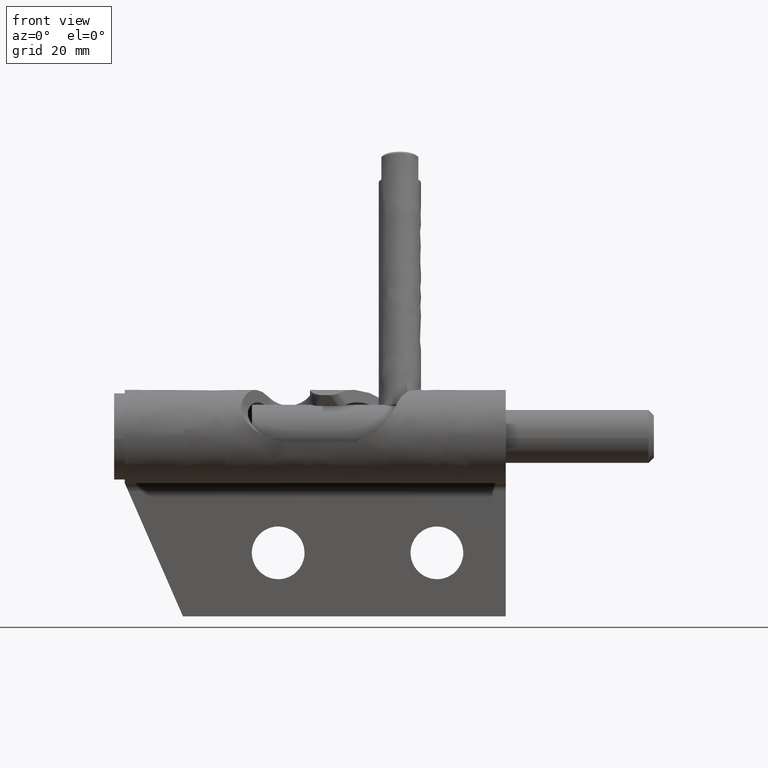
[diagram: clean part render]
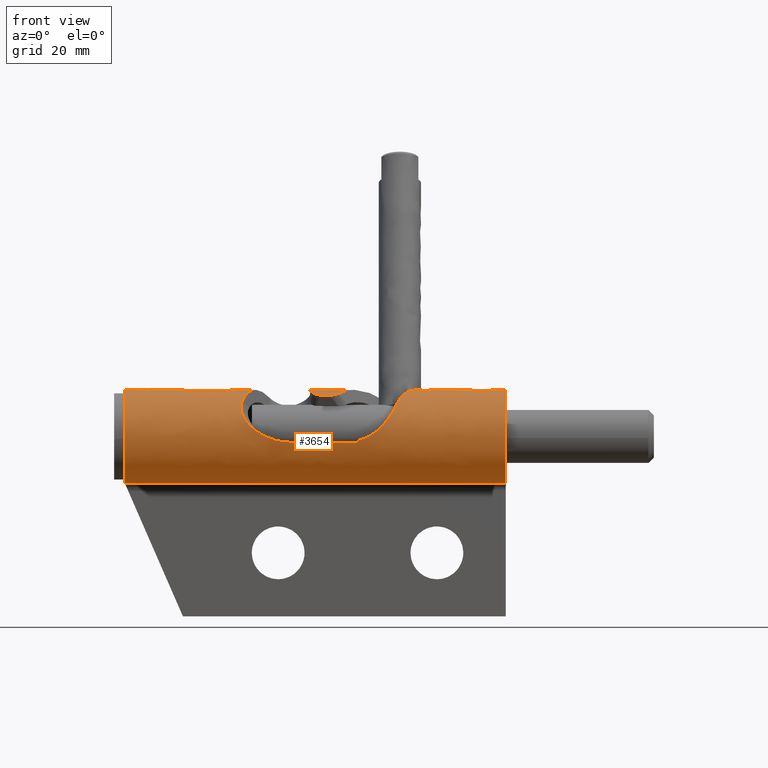
[diagram: same view with one face highlighted and labeled with its STEP entity id]
A machine part, front view. The second image highlights one B-rep face of the part: STEP entity #3654.
In plain terms, the highlighted face is a freeform B-spline surface patch.
Its self-contained STEP definition (entity closure, byte-faithful):
#1923=CARTESIAN_POINT('',(-23.350283713240248,-21.266748338416750,30.171190567687152));
#1924=VERTEX_POINT('',#1923);
#1972=CARTESIAN_POINT('',(-22.006414065182600,-22.023311079674102,29.826427534716700));
#1973=VERTEX_POINT('',#1972);
#1987=CARTESIAN_POINT('',(-23.350283713240248,-21.266748338416750,30.171190567687152));
#1988=CARTESIAN_POINT('',(-23.280269841618971,-21.376664668561720,30.127247278653360));
#1989=CARTESIAN_POINT('',(-23.196353640732589,-21.474614404531192,30.085553201843691));
#1990=CARTESIAN_POINT('',(-23.075399775995709,-21.583747055184620,30.037246218976801));
#1991=CARTESIAN_POINT('',(-23.050394791979560,-21.604898749778648,30.027777412467771));
#1992=CARTESIAN_POINT('',(-22.998748393146400,-21.645859190035718,30.009258139597929));
#1993=CARTESIAN_POINT('',(-22.972089903610328,-21.665669299804989,30.000206331088101));
#1994=CARTESIAN_POINT('',(-22.890771461091411,-21.722343837429520,29.974075957627281));
#1995=CARTESIAN_POINT('',(-22.834425044500140,-21.756748734957380,29.957891808693532));
#1996=CARTESIAN_POINT('',(-22.717757516207879,-21.819363964884818,29.928030146273080));
#1997=CARTESIAN_POINT('',(-22.657434240055530,-21.847570737929111,29.914353605734739));
#1998=CARTESIAN_POINT('',(-22.533000512930439,-21.898162204490369,29.889557972881459));
#1999=CARTESIAN_POINT('',(-22.468866526923531,-21.920509827887791,29.878455935598009));
#2000=CARTESIAN_POINT('',(-22.274781815381999,-21.978370762079120,29.849485781777751));
#2001=CARTESIAN_POINT('',(-22.141918302522971,-22.005230513287110,29.835722164066912));
#2002=CARTESIAN_POINT('',(-22.006414065182600,-22.023311079674102,29.826427534716700));
#2003=B_SPLINE_CURVE_WITH_KNOTS('',3,(#1987,#1988,#1989,#1990,#1991,#1992,#1993,#1994,#1995,#1996,#1997,#1998,#1999,#2000,#2001,#2002),.UNSPECIFIED.,.F.,.U.,(4,2,2,2,2,2,2,4),(0.0,0.249999999999997,0.312499999999999,0.375000000000001,0.500000000000001,0.625000000000001,0.750000000000001,1.0),.UNSPECIFIED.);
#2004=EDGE_CURVE('',#1924,#1973,#2003,.T.);
#2030=CARTESIAN_POINT('',(-21.508677604261351,-22.058360596108049,29.808310269958049));
#2031=VERTEX_POINT('',#2030);
#2039=CARTESIAN_POINT('',(-22.006414065182600,-22.023311079674102,29.826427534716700));
#2040=CARTESIAN_POINT('',(-21.841421596447422,-22.045326312133660,29.815110221896230));
#2041=CARTESIAN_POINT('',(-21.675632280070609,-22.058360596109591,29.808310269958831));
#2042=CARTESIAN_POINT('',(-21.508677604261351,-22.058360596108049,29.808310269958049));
#2043=QUASI_UNIFORM_CURVE('',3,(#2039,#2040,#2041,#2042),.UNSPECIFIED.,.F.,.U.);
#2044=EDGE_CURVE('',#1973,#2031,#2043,.T.);
#2069=CARTESIAN_POINT('',(-20.491322395737900,-22.058360596108301,29.808310269958550));
#2070=VERTEX_POINT('',#2069);
#2080=CARTESIAN_POINT('',(-19.993585934817151,-22.023311079674450,29.826427534716348));
#2081=VERTEX_POINT('',#2080);
#2095=CARTESIAN_POINT('',(-20.491322395737900,-22.058360596108301,29.808310269958550));
#2096=CARTESIAN_POINT('',(-20.324367719928471,-22.058360596109068,29.808310269958351));
#2097=CARTESIAN_POINT('',(-20.158578403551768,-22.045326312133739,29.815110221896319));
#2098=CARTESIAN_POINT('',(-19.993585934817151,-22.023311079674450,29.826427534716348));
#2099=QUASI_UNIFORM_CURVE('',3,(#2095,#2096,#2097,#2098),.UNSPECIFIED.,.F.,.U.);
#2100=EDGE_CURVE('',#2070,#2081,#2099,.T.);
#2141=CARTESIAN_POINT('',(-19.148261878896349,-21.745017740201799,29.963343652359502));
#2142=VERTEX_POINT('',#2141);
#2156=CARTESIAN_POINT('',(-19.993585934817151,-22.023311079674450,29.826427534716348));
#2157=CARTESIAN_POINT('',(-19.843228875683209,-22.003248675406969,29.836740962268959));
#2158=CARTESIAN_POINT('',(-19.696605068998402,-21.972422534008199,29.852542062346100));
#2159=CARTESIAN_POINT('',(-19.484055370510241,-21.904535926163980,29.886395793307440));
#2160=CARTESIAN_POINT('',(-19.414431972235239,-21.878308485150360,29.899358460429180));
#2161=CARTESIAN_POINT('',(-19.277977384742780,-21.817557453504548,29.928896258719458));
#2162=CARTESIAN_POINT('',(-19.211765328768362,-21.783282418464601,29.945348460242531));
#2163=CARTESIAN_POINT('',(-19.148261878896349,-21.745017740201799,29.963343652359502));
#2164=B_SPLINE_CURVE_WITH_KNOTS('',3,(#2156,#2157,#2158,#2159,#2160,#2161,#2162,#2163),.UNSPECIFIED.,.F.,.U.,(4,2,2,4),(0.0,0.499999999999996,0.749999999999998,1.0),.UNSPECIFIED.);
#2165=EDGE_CURVE('',#2081,#2142,#2164,.T.);
#2184=CARTESIAN_POINT('',(-23.995877802358748,-18.903393674051451,30.753506718426149));
#2185=VERTEX_POINT('',#2184);
#2192=CARTESIAN_POINT('',(-23.995877802358748,-18.903393674051451,30.753506718426149));
#2193=CARTESIAN_POINT('',(-24.005950280180141,-19.115626084145539,30.731603563176598));
#2194=CARTESIAN_POINT('',(-23.997479594606521,-19.326235269206681,30.702078929219869));
#2195=CARTESIAN_POINT('',(-23.959795228668920,-19.639823533713059,30.646516535472291));
#2196=CARTESIAN_POINT('',(-23.942944694359682,-19.744344253268309,30.626024146842180));
#2197=CARTESIAN_POINT('',(-23.901647615108612,-19.949708021485190,30.581938480714651));
#2198=CARTESIAN_POINT('',(-23.877206666608160,-20.050778437685569,30.558320445828169));
#2199=CARTESIAN_POINT('',(-23.793177348422081,-20.349450209287699,30.483056520494490));
#2200=CARTESIAN_POINT('',(-23.722983901292238,-20.542543903513241,30.427000644547189));
#2201=CARTESIAN_POINT('',(-23.618109864258130,-20.776826789222021,30.350548623769541));
#2202=CARTESIAN_POINT('',(-23.596231407816049,-20.823401008197219,30.334912523443720));
#2203=CARTESIAN_POINT('',(-23.551022289833799,-20.915251328923681,30.303232485951298));
#2204=CARTESIAN_POINT('',(-23.527674132178252,-20.960574446333830,30.287174696048549));
#2205=CARTESIAN_POINT('',(-23.455424994218038,-21.094781069546659,30.238409562046780));
#2206=CARTESIAN_POINT('',(-23.404326047466729,-21.181906079123259,30.205109530569590));
#2207=CARTESIAN_POINT('',(-23.350283713240248,-21.266748338416750,30.171190567687152));
#2208=B_SPLINE_CURVE_WITH_KNOTS('',3,(#2192,#2193,#2194,#2195,#2196,#2197,#2198,#2199,#2200,#2201,#2202,#2203,#2204,#2205,#2206,#2207),.UNSPECIFIED.,.F.,.U.,(4,2,2,2,2,2,2,4),(0.0,0.249999999999998,0.374999999999998,0.499999999999997,0.749999999999999,0.812500000000000,0.875000000000000,1.0),.UNSPECIFIED.);
#2209=EDGE_CURVE('',#2185,#1924,#2208,.T.);
#2316=CARTESIAN_POINT('',(-18.684868691935598,-21.340771953838001,30.141206467867150));
#2317=VERTEX_POINT('',#2316);
#2323=CARTESIAN_POINT('',(-19.148261878896349,-21.745017740201799,29.963343652359502));
#2324=CARTESIAN_POINT('',(-19.103606363433041,-21.718110085032048,29.975997840142540));
#2325=CARTESIAN_POINT('',(-19.059845874492051,-21.689245790729039,29.989405834081829));
#2326=CARTESIAN_POINT('',(-18.975038502481240,-21.627828164821189,30.017481081524469));
#2327=CARTESIAN_POINT('',(-18.934442897359219,-21.595616427878600,30.031992488201020));
#2328=CARTESIAN_POINT('',(-18.818064536651381,-21.494418895449449,30.076786482934828));
#2329=CARTESIAN_POINT('',(-18.747640841200219,-21.420913600680709,30.108320068638761));
#2330=CARTESIAN_POINT('',(-18.684868691935598,-21.340771953838001,30.141206467867150));
#2331=B_SPLINE_CURVE_WITH_KNOTS('',3,(#2323,#2324,#2325,#2326,#2327,#2328,#2329,#2330),.UNSPECIFIED.,.F.,.U.,(4,2,2,4),(0.0,0.249999999999996,0.499999999999992,1.0),.UNSPECIFIED.);
#2332=EDGE_CURVE('',#2142,#2317,#2331,.T.);
#2353=CARTESIAN_POINT('',(-21.508677604261351,-22.058360596108049,29.808310269958049));
#2354=CARTESIAN_POINT('',(-20.491322395737900,-22.058360596108301,29.808310269958550));
#2355=QUASI_UNIFORM_CURVE('',1,(#2353,#2354),.UNSPECIFIED.,.F.,.U.);
#2356=EDGE_CURVE('',#2031,#2070,#2355,.T.);
#2366=CARTESIAN_POINT('',(-15.070482217976350,-26.733738467919899,20.922125993459201));
#2367=VERTEX_POINT('',#2366);
#2368=CARTESIAN_POINT('',(-15.070482217976350,-26.760564376475500,21.167827057860851));
#2369=VERTEX_POINT('',#2368);
#2370=CARTESIAN_POINT('',(-15.070482217976350,-26.733738467919888,20.922125993459201));
#2371=CARTESIAN_POINT('',(-15.070482217976350,-26.748876812845861,21.044788145638702));
#2372=CARTESIAN_POINT('',(-15.070482217976350,-26.760564376475489,21.167827057860851));
#2380=(BOUNDED_CURVE()B_SPLINE_CURVE(2,(#2370,#2371,#2372),.UNSPECIFIED.,.F.,.U.)CURVE()GEOMETRIC_REPRESENTATION_ITEM()QUASI_UNIFORM_CURVE()RATIONAL_B_SPLINE_CURVE((1.0,0.999901388729047,1.0))REPRESENTATION_ITEM(''));
#2381=EDGE_CURVE('',#2367,#2369,#2380,.T.);
#2435=CARTESIAN_POINT('',(-7.450662444728820,-23.997559661727148,28.439664440327800));
#2436=VERTEX_POINT('',#2435);
#2437=CARTESIAN_POINT('',(-15.070482217976330,-26.760564376475489,21.167827057860809));
#2438=CARTESIAN_POINT('',(-14.597130628077990,-26.770942159430000,21.277077468507819));
#2439=CARTESIAN_POINT('',(-14.138334157659500,-26.782940931742399,21.422736501600291));
#2440=CARTESIAN_POINT('',(-13.249869341377360,-26.799319401325452,21.787249840144860));
#2441=CARTESIAN_POINT('',(-12.820203273706101,-26.803713413583839,22.006109412925071));
#2442=CARTESIAN_POINT('',(-12.301289147769840,-26.794204787653939,22.325653346972661));
#2443=CARTESIAN_POINT('',(-12.198186635377720,-26.791527794659022,22.392022205585558));
#2444=CARTESIAN_POINT('',(-11.995615378641670,-26.784403602394761,22.528105788804041));
#2445=CARTESIAN_POINT('',(-11.895995891169321,-26.779957421050810,22.597899582982681));
#2446=CARTESIAN_POINT('',(-11.601958684191979,-26.763603568890119,22.812279135839521));
#2447=CARTESIAN_POINT('',(-11.412358947434999,-26.748681838692629,22.961859547142531));
#2448=CARTESIAN_POINT('',(-10.861540996069330,-26.688922557453640,23.428655172870702));
#2449=CARTESIAN_POINT('',(-10.518261187825450,-26.629152193778332,23.763885750554788));
#2450=CARTESIAN_POINT('',(-10.115487846741530,-26.519171986929521,24.207273474196221));
#2451=CARTESIAN_POINT('',(-10.036101926589490,-26.495356715407599,24.297349331546020));
#2452=CARTESIAN_POINT('',(-9.880627651056987,-26.444153712924440,24.478944885567341));
#2453=CARTESIAN_POINT('',(-9.804701847489733,-26.416829396308291,24.570261977662131));
#2454=CARTESIAN_POINT('',(-9.582069057259202,-26.329484104379340,24.845478771031669));
#2455=CARTESIAN_POINT('',(-9.440500661889322,-26.264091397684570,25.030640020847059));
#2456=CARTESIAN_POINT('',(-9.034292390474001,-26.044806059017741,25.589016262678030));
#2457=CARTESIAN_POINT('',(-8.788103406159630,-25.867866344273970,25.965117705026039));
#2458=CARTESIAN_POINT('',(-8.505377251213636,-25.602379836883220,26.433442597731538));
#2459=CARTESIAN_POINT('',(-8.450086287940312,-25.547062410470080,26.527018143830340));
#2460=CARTESIAN_POINT('',(-8.341879565171032,-25.431818061441280,26.713822716621291));
#2461=CARTESIAN_POINT('',(-8.289230296418403,-25.372167524707240,26.806594349643031));
#2462=CARTESIAN_POINT('',(-8.135812222745559,-25.187696684550922,27.081911981564520));
#2463=CARTESIAN_POINT('',(-8.039342187347993,-25.057120586740400,27.261850464262970));
#2464=CARTESIAN_POINT('',(-7.764662880463771,-24.642518980643491,27.789389149817868));
#2465=CARTESIAN_POINT('',(-7.601192220203231,-24.335673737204790,28.124763041514679));
#2466=CARTESIAN_POINT('',(-7.450662444728820,-23.997559661727148,28.439664440327800));
#2467=B_SPLINE_CURVE_WITH_KNOTS('',3,(#2437,#2438,#2439,#2440,#2441,#2442,#2443,#2444,#2445,#2446,#2447,#2448,#2449,#2450,#2451,#2452,#2453,#2454,#2455,#2456,#2457,#2458,#2459,#2460,#2461,#2462,#2463,#2464,#2465,#2466),.UNSPECIFIED.,.F.,.U.,(4,2,2,2,2,2,2,2,2,2,2,2,2,2,4),(0.0,0.124999999999999,0.249999999999999,0.281249999999999,0.312499999999998,0.374999999999998,0.499999999999997,0.531249999999996,0.562499999999996,0.624999999999996,0.749999999999996,0.781249999999997,0.812499999999997,0.874999999999998,1.0),.UNSPECIFIED.);
#2468=EDGE_CURVE('',#2369,#2436,#2467,.T.);
#2537=CARTESIAN_POINT('',(-36.863984680403398,-23.997565088206851,28.439659386390101));
#2538=VERTEX_POINT('',#2537);
#2539=CARTESIAN_POINT('',(-27.826523505166101,-26.733738467919899,20.922125993459151));
#2540=VERTEX_POINT('',#2539);
#2541=CARTESIAN_POINT('',(-36.863984680403533,-23.997565088206830,28.439659386390140));
#2542=CARTESIAN_POINT('',(-36.897875620583193,-24.101386280675509,28.342965707112310));
#2543=CARTESIAN_POINT('',(-36.927155888791773,-24.203993854829712,28.242721616568090));
#2544=CARTESIAN_POINT('',(-36.963261288110942,-24.356032111378131,28.086553543041688));
#2545=CARTESIAN_POINT('',(-36.973982714239433,-24.406398302033580,28.033521028695031));
#2546=CARTESIAN_POINT('',(-36.992484275211332,-24.505484054432031,27.926549791028069));
#2547=CARTESIAN_POINT('',(-37.000296999286313,-24.554331958842852,27.872481425674440));
#2548=CARTESIAN_POINT('',(-37.032010510108407,-24.795107584740862,27.599232202489539));
#2549=CARTESIAN_POINT('',(-37.033946998050652,-24.976669821749070,27.371351625722401));
#2550=CARTESIAN_POINT('',(-37.003725632611527,-25.189712947705321,27.074776988711118));
#2551=CARTESIAN_POINT('',(-36.996043567937363,-25.231624444167110,27.014874450149200));
#2552=CARTESIAN_POINT('',(-36.977295002795863,-25.314044327006769,26.893885310754118));
#2553=CARTESIAN_POINT('',(-36.966248157627589,-25.354420745550819,26.832983658206931));
#2554=CARTESIAN_POINT('',(-36.928401569186043,-25.472137203493482,26.650602948489741));
#2555=CARTESIAN_POINT('',(-36.896812384642850,-25.546472690124951,26.528857879993790));
#2556=CARTESIAN_POINT('',(-36.783520050133802,-25.757899704195651,26.163436947952459));
#2557=CARTESIAN_POINT('',(-36.683346188522442,-25.883443869239180,25.919574937983850));
#2558=CARTESIAN_POINT('',(-36.497255368058070,-26.051298486725830,25.554508603326941));
#2559=CARTESIAN_POINT('',(-36.430097123156663,-26.103054560550000,25.434631360311538));
#2560=CARTESIAN_POINT('',(-36.286742967414177,-26.198957597854530,25.198949843475070));
#2561=CARTESIAN_POINT('',(-36.210488358990688,-26.243153680892739,25.083034395473021));
#2562=CARTESIAN_POINT('',(-35.968997603846191,-26.365801822385531,24.740820065329341));
#2563=CARTESIAN_POINT('',(-35.791091643741503,-26.434364964413980,24.520030721863730));
#2564=CARTESIAN_POINT('',(-35.549836593844631,-26.506930695792938,24.252819752328289));
#2565=CARTESIAN_POINT('',(-35.500585644349407,-26.520793515299761,24.199768554928799));
#2566=CARTESIAN_POINT('',(-35.400919872009752,-26.547094251628319,24.095252652882241));
#2567=CARTESIAN_POINT('',(-35.350429232574598,-26.559556935312450,24.043700838682380));
#2568=CARTESIAN_POINT('',(-35.197072690211343,-26.595041060525439,23.891079415420901));
#2569=CARTESIAN_POINT('',(-35.092325388377297,-26.616162951707580,23.792040525860841));
#2570=CARTESIAN_POINT('',(-34.771130053732072,-26.673012967129718,23.502510931348830));
#2571=CARTESIAN_POINT('',(-34.547762970188643,-26.702266497692399,23.319571222891138));
#2572=CARTESIAN_POINT('',(-34.084567144505307,-26.747902357309741,22.972067259049840));
#2573=CARTESIAN_POINT('',(-33.844726895698521,-26.764262894598389,22.807513775642860));
#2574=CARTESIAN_POINT('',(-33.473368904404872,-26.781611255016902,22.573933281516581));
#2575=CARTESIAN_POINT('',(-33.347581481734153,-26.786184845065382,22.498270375128691));
#2576=CARTESIAN_POINT('',(-33.094446043783492,-26.793235568403830,22.352598549267260));
#2577=CARTESIAN_POINT('',(-32.966822249203787,-26.795727400382550,22.282410377505830));
#2578=CARTESIAN_POINT('',(-32.580883079867412,-26.800680628298689,22.079529688424881));
#2579=CARTESIAN_POINT('',(-32.319511446324540,-26.800635550494430,21.954492026615760));
#2580=CARTESIAN_POINT('',(-31.788833820013689,-26.796432228280040,21.724251706180819));
#2581=CARTESIAN_POINT('',(-31.519526532936329,-26.792266756828859,21.619052386653820));
#2582=CARTESIAN_POINT('',(-30.972840217392509,-26.781958969394221,21.428797350121538));
#2583=CARTESIAN_POINT('',(-30.695461850164619,-26.775813150337569,21.343740040791779));
#2584=CARTESIAN_POINT('',(-30.272978321387139,-26.766515132816131,21.232142056086950));
#2585=CARTESIAN_POINT('',(-30.131078376938731,-26.763400802759609,21.197614325773198));
#2586=CARTESIAN_POINT('',(-29.845037692667031,-26.757357006226290,21.134139349830651));
#2587=CARTESIAN_POINT('',(-29.701507435285261,-26.754441396623321,21.105335393545989));
#2588=CARTESIAN_POINT('',(-29.270850633784519,-26.746326229910999,21.028170189906849));
#2589=CARTESIAN_POINT('',(-28.983039483310240,-26.741760439653579,20.988893103463759));
#2590=CARTESIAN_POINT('',(-28.405927745882838,-26.735464645992479,20.935871173620878));
#2591=CARTESIAN_POINT('',(-28.116627154832749,-26.733738467919800,20.922125993458351));
#2592=CARTESIAN_POINT('',(-27.826523505166101,-26.733738467919899,20.922125993459151));
#2593=B_SPLINE_CURVE_WITH_KNOTS('',3,(#2541,#2542,#2543,#2544,#2545,#2546,#2547,#2548,#2549,#2550,#2551,#2552,#2553,#2554,#2555,#2556,#2557,#2558,#2559,#2560,#2561,#2562,#2563,#2564,#2565,#2566,#2567,#2568,#2569,#2570,#2571,#2572,#2573,#2574,#2575,#2576,#2577,#2578,#2579,#2580,#2581,#2582,#2583,#2584,#2585,#2586,#2587,#2588,#2589,#2590,#2591,#2592),.UNSPECIFIED.,.F.,.U.,(4,2,2,2,2,2,2,2,2,2,2,2,2,2,2,2,2,2,2,2,2,2,2,2,2,4),(0.0,0.031250000000001,0.046875000000001,0.062500000000002,0.125000000000003,0.140625000000003,0.156250000000003,0.187500000000003,0.250000000000002,0.281250000000001,0.312500000000000,0.374999999999997,0.390624999999997,0.406249999999997,0.437499999999998,0.499999999999999,0.562500000000000,0.593750000000000,0.625000000000001,0.687500000000001,0.750000000000001,0.812500000000001,0.843750000000001,0.875000000000001,0.937500000000000,1.0),.UNSPECIFIED.);
#2594=EDGE_CURVE('',#2538,#2540,#2593,.T.);
#2684=CARTESIAN_POINT('',(-15.070482217976350,-26.733738467919899,20.922125993459201));
#2685=CARTESIAN_POINT('',(-27.826523505166101,-26.733738467919899,20.922125993459151));
#2686=QUASI_UNIFORM_CURVE('',1,(#2684,#2685),.UNSPECIFIED.,.F.,.U.);
#2687=EDGE_CURVE('',#2367,#2540,#2686,.T.);
#2697=CARTESIAN_POINT('',(-31.717855426498300,-13.229324157343560,29.394636705362149));
#2698=VERTEX_POINT('',#2697);
#2699=CARTESIAN_POINT('',(-31.717855426498300,-13.229324157343560,29.394636705362149));
#2700=CARTESIAN_POINT('',(-35.227740185628605,-18.985108847178303,33.108001414059018));
#2701=CARTESIAN_POINT('',(-36.863984680403398,-23.997565088206851,28.439659386390101));
#2709=(BOUNDED_CURVE()B_SPLINE_CURVE(2,(#2699,#2700,#2701),.UNSPECIFIED.,.F.,.U.)CURVE()GEOMETRIC_REPRESENTATION_ITEM()QUASI_UNIFORM_CURVE()RATIONAL_B_SPLINE_CURVE((1.0,0.789124581931236,1.0))REPRESENTATION_ITEM(''));
#2710=EDGE_CURVE('',#2698,#2538,#2709,.T.);
#2741=CARTESIAN_POINT('',(-3.586285180534330,-17.408086596651248,30.780070530621401));
#2742=VERTEX_POINT('',#2741);
#2743=CARTESIAN_POINT('',(-7.450662444728820,-23.997559661727148,28.439664440327800));
#2744=CARTESIAN_POINT('',(-6.209393190739935,-21.209469365893796,31.036342892519368));
#2745=CARTESIAN_POINT('',(-3.586285180534330,-17.408086596651248,30.780070530621401));
#2753=(BOUNDED_CURVE()B_SPLINE_CURVE(2,(#2743,#2744,#2745),.UNSPECIFIED.,.F.,.U.)CURVE()GEOMETRIC_REPRESENTATION_ITEM()QUASI_UNIFORM_CURVE()RATIONAL_B_SPLINE_CURVE((1.0,0.917681963500707,1.0))REPRESENTATION_ITEM(''));
#2754=EDGE_CURVE('',#2436,#2742,#2753,.T.);
#2798=CARTESIAN_POINT('',(-23.805771076697699,-15.197991057817751,30.341986926859700));
#2799=VERTEX_POINT('',#2798);
#2800=CARTESIAN_POINT('',(-23.805771076697699,-15.197991057817751,30.341986926859700));
#2801=CARTESIAN_POINT('',(-23.799489831256341,-15.084489507633130,30.303862633290201));
#2802=CARTESIAN_POINT('',(-23.798302603217859,-14.971212765856160,30.263237477765990));
#2803=CARTESIAN_POINT('',(-23.804396875244411,-14.801647293113771,30.198426763304710));
#2804=CARTESIAN_POINT('',(-23.807757933662160,-14.745025339772210,30.176112056693210));
#2805=CARTESIAN_POINT('',(-23.817089574965550,-14.632792371333080,30.130533880857801));
#2806=CARTESIAN_POINT('',(-23.823047964265541,-14.577211980257911,30.107287752995369));
#2807=CARTESIAN_POINT('',(-23.859166034690990,-14.301920470923630,29.988847751957682));
#2808=CARTESIAN_POINT('',(-23.908160142482888,-14.090002827596720,29.887031596859131));
#2809=CARTESIAN_POINT('',(-23.993847511574248,-13.834790287393220,29.752055348817802));
#2810=CARTESIAN_POINT('',(-24.012216092299099,-13.784234281254580,29.724674556599261));
#2811=CARTESIAN_POINT('',(-24.051433981199690,-13.684086243714869,29.669169840929982));
#2812=CARTESIAN_POINT('',(-24.072322640934289,-13.634407927196580,29.640995630657510));
#2813=CARTESIAN_POINT('',(-24.138486809774871,-13.487409407197649,29.555750104202591));
#2814=CARTESIAN_POINT('',(-24.186952533875662,-13.392736152917960,29.498323327444989));
#2815=CARTESIAN_POINT('',(-24.344912884923779,-13.117983325528369,29.324810216539451));
#2816=CARTESIAN_POINT('',(-24.466869117063460,-12.947115900900121,29.207470813861171));
#2817=CARTESIAN_POINT('',(-24.674721801241720,-12.707614283946720,29.031391878242509));
#2818=CARTESIAN_POINT('',(-24.748492064379182,-12.630338423242350,28.972478787315431));
#2819=CARTESIAN_POINT('',(-24.902213915812698,-12.483538604169240,28.856922017697158));
#2820=CARTESIAN_POINT('',(-24.982324034852731,-12.413775002963510,28.800116612113118));
#2821=CARTESIAN_POINT('',(-25.232317207848428,-12.214710669024321,28.633280484067210));
#2822=CARTESIAN_POINT('',(-25.411774549383271,-12.095560017610790,28.526776832714489));
#2823=CARTESIAN_POINT('',(-25.701373273561050,-11.935941942766661,28.377500036136979));
#2824=CARTESIAN_POINT('',(-25.801707016153500,-11.885805568650181,28.329359938368619));
#2825=CARTESIAN_POINT('',(-26.005886038371230,-11.793569194319550,28.238941210500020));
#2826=CARTESIAN_POINT('',(-26.110074303470132,-11.751246077458420,28.196461266304020));
#2827=CARTESIAN_POINT('',(-26.429018483053799,-11.635178862625310,28.077934116652450));
#2828=CARTESIAN_POINT('',(-26.650101640332309,-11.572235021749661,28.010739173695669));
#2829=CARTESIAN_POINT('',(-26.938044646758708,-11.511513361990239,27.944734047897569));
#2830=CARTESIAN_POINT('',(-26.996216848984030,-11.500275093857811,27.932437206215621));
#2831=CARTESIAN_POINT('',(-27.113771860444171,-11.479643163941770,27.909753107506720));
#2832=CARTESIAN_POINT('',(-27.173135135924319,-11.470260933027930,27.899378219534640));
#2833=CARTESIAN_POINT('',(-27.350941100985100,-11.445208482541780,27.871569705121608));
#2834=CARTESIAN_POINT('',(-27.469799503604261,-11.432495215901540,27.857308107124179));
#2835=CARTESIAN_POINT('',(-27.827328242634511,-11.405948252160250,27.827451497058249));
#2836=CARTESIAN_POINT('',(-28.066947076557302,-11.403595462470280,27.824762019718381));
#2837=CARTESIAN_POINT('',(-28.428328063309809,-11.423638111078690,27.847355441412589));
#2838=CARTESIAN_POINT('',(-28.549626645703452,-11.434372783421180,27.859437949372509));
#2839=CARTESIAN_POINT('',(-28.787738493997619,-11.463440693479990,27.891847440487069));
#2840=CARTESIAN_POINT('',(-28.905089034265011,-11.481770197776070,27.912169682926969));
#2841=CARTESIAN_POINT('',(-29.252255379944579,-11.547972156313980,27.984615038712551));
#2842=CARTESIAN_POINT('',(-29.477414535932020,-11.607018047643500,28.048245437076499));
#2843=CARTESIAN_POINT('',(-29.914409621379470,-11.756245752272770,28.202178972285541));
#2844=CARTESIAN_POINT('',(-30.120693287779819,-11.844495352894331,28.290433941686249));
#2845=CARTESIAN_POINT('',(-30.413587903917101,-11.997680312466731,28.435612443852179));
#2846=CARTESIAN_POINT('',(-30.508444232000858,-12.052233670092541,28.486155569151659));
#2847=CARTESIAN_POINT('',(-30.692682251531640,-12.168661949751840,28.591026849144662));
#2848=CARTESIAN_POINT('',(-30.782402860187350,-12.230818494434120,28.645589109424531));
#2849=CARTESIAN_POINT('',(-31.039570731350778,-12.426132374573370,28.811845500015540));
#2850=CARTESIAN_POINT('',(-31.195871278122830,-12.568343759073860,28.926376752145998));
#2851=CARTESIAN_POINT('',(-31.408484016633910,-12.801070795225650,29.100741597312879));
#2852=CARTESIAN_POINT('',(-31.475690974925978,-12.881897664522270,29.159301113468580));
#2853=CARTESIAN_POINT('',(-31.570896550868650,-13.008355078157599,29.247490735535909));
#2854=CARTESIAN_POINT('',(-31.601696069736231,-13.051378315567270,29.276945993667120));
#2855=CARTESIAN_POINT('',(-31.661386036970772,-13.139239813383750,29.335925979628740));
#2856=CARTESIAN_POINT('',(-31.690243357979920,-13.184043718780821,29.365423871385200));
#2857=CARTESIAN_POINT('',(-31.717855426498300,-13.229324157343560,29.394636705362149));
#2858=B_SPLINE_CURVE_WITH_KNOTS('',3,(#2800,#2801,#2802,#2803,#2804,#2805,#2806,#2807,#2808,#2809,#2810,#2811,#2812,#2813,#2814,#2815,#2816,#2817,#2818,#2819,#2820,#2821,#2822,#2823,#2824,#2825,#2826,#2827,#2828,#2829,#2830,#2831,#2832,#2833,#2834,#2835,#2836,#2837,#2838,#2839,#2840,#2841,#2842,#2843,#2844,#2845,#2846,#2847,#2848,#2849,#2850,#2851,#2852,#2853,#2854,#2855,#2856,#2857),.UNSPECIFIED.,.F.,.U.,(4,2,2,2,2,2,2,2,2,2,2,2,2,2,2,2,2,2,2,2,2,2,2,2,2,2,2,2,4),(0.0,0.031250000000001,0.046875000000002,0.062500000000002,0.125000000000003,0.140625000000004,0.156250000000004,0.187500000000004,0.250000000000004,0.281250000000004,0.312500000000004,0.375000000000003,0.406250000000003,0.437500000000003,0.500000000000003,0.515625000000003,0.531250000000002,0.562500000000002,0.625000000000001,0.656250000000001,0.687500000000001,0.750000000000000,0.812500000000000,0.843749999999999,0.874999999999999,0.937499999999999,0.968749999999999,0.984374999999999,1.0),.UNSPECIFIED.);
#2859=EDGE_CURVE('',#2799,#2698,#2858,.T.);
#2945=CARTESIAN_POINT('',(-23.995877802358748,-18.903393674051451,30.753506718426149));
#2946=CARTESIAN_POINT('',(-23.905832628450273,-17.006094457736303,30.949314885941678));
#2947=CARTESIAN_POINT('',(-23.805771076697699,-15.197991057817751,30.341986926859700));
#2955=(BOUNDED_CURVE()B_SPLINE_CURVE(2,(#2945,#2946,#2947),.UNSPECIFIED.,.F.,.U.)CURVE()GEOMETRIC_REPRESENTATION_ITEM()QUASI_UNIFORM_CURVE()RATIONAL_B_SPLINE_CURVE((1.0,0.977306822398068,1.0))REPRESENTATION_ITEM(''));
#2956=EDGE_CURVE('',#2185,#2799,#2955,.T.);
#2995=CARTESIAN_POINT('',(-9.999864550673749,-12.400854903743040,28.788930268537001));
#2996=VERTEX_POINT('',#2995);
#2997=CARTESIAN_POINT('',(-3.586285180534330,-17.408086596651248,30.780070530621401));
#2998=CARTESIAN_POINT('',(-3.434466499745654,-17.188072432179140,30.765238151735861));
#2999=CARTESIAN_POINT('',(-3.304050733321173,-16.959186112618049,30.741517648270761));
#3000=CARTESIAN_POINT('',(-3.139660007354959,-16.603545684873971,30.689319388281511));
#3001=CARTESIAN_POINT('',(-3.090104560747355,-16.482924779244950,30.669145601514000));
#3002=CARTESIAN_POINT('',(-3.023873505990992,-16.298840394476400,30.634231677917519));
#3003=CARTESIAN_POINT('',(-3.003149349379088,-16.236952354830692,30.621817390017579));
#3004=CARTESIAN_POINT('',(-2.964479379100699,-16.112102403357142,30.595342620892829));
#3005=CARTESIAN_POINT('',(-2.946490507891870,-16.048954529933091,30.581235937556919));
#3006=CARTESIAN_POINT('',(-2.864589131757646,-15.733945129186401,30.507174242899548));
#3007=CARTESIAN_POINT('',(-2.823980826037490,-15.482812762103380,30.436417887322321));
#3008=CARTESIAN_POINT('',(-2.799792680157855,-15.107758773555060,30.312176927742371));
#3009=CARTESIAN_POINT('',(-2.797891510217214,-14.983011948304210,30.267740737582152));
#3010=CARTESIAN_POINT('',(-2.804582034416872,-14.796315776377840,30.196392245817801));
#3011=CARTESIAN_POINT('',(-2.808426208996597,-14.733962527495260,30.171746254977158));
#3012=CARTESIAN_POINT('',(-2.819262544120014,-14.610624562468169,30.121365142080140));
#3013=CARTESIAN_POINT('',(-2.826243733376328,-14.549603605227780,30.095622408216350));
#3014=CARTESIAN_POINT('',(-2.868790464185894,-14.247647808721879,29.964248385890130));
#3015=CARTESIAN_POINT('',(-2.927068889029052,-14.016105799017611,29.850642502350560));
#3016=CARTESIAN_POINT('',(-3.050126046329896,-13.682783023268900,29.669265789624738));
#3017=CARTESIAN_POINT('',(-3.097412845578304,-13.573531483080551,29.606666602205159));
#3018=CARTESIAN_POINT('',(-3.202216692710714,-13.363552268749190,29.480531582966659));
#3019=CARTESIAN_POINT('',(-3.259797953120216,-13.262466325656479,29.416830764199549));
#3020=CARTESIAN_POINT('',(-3.385008229785025,-13.067558759638469,29.288664302236491));
#3021=CARTESIAN_POINT('',(-3.452637917580421,-12.973738328218641,29.224197547164000));
#3022=CARTESIAN_POINT('',(-3.561621399617443,-12.838189416723891,29.127327384847419));
#3023=CARTESIAN_POINT('',(-3.599208092808852,-12.793871398109740,29.095009393454191));
#3024=CARTESIAN_POINT('',(-3.676928768977937,-12.706935871824751,29.030391557207000));
#3025=CARTESIAN_POINT('',(-3.717161566622616,-12.664221399158130,28.998016048686001));
#3026=CARTESIAN_POINT('',(-3.923436093555947,-12.456219030664901,28.837447102679420));
#3027=CARTESIAN_POINT('',(-4.104198158684331,-12.307722621837019,28.713370199159620));
#3028=CARTESIAN_POINT('',(-4.398921787095567,-12.108611662166711,28.537536519826830));
#3029=CARTESIAN_POINT('',(-4.501123806661303,-12.046212370010080,28.480650788799050));
#3030=CARTESIAN_POINT('',(-4.713831171054689,-11.929179097274810,28.371150238098121));
#3031=CARTESIAN_POINT('',(-4.824688116384214,-11.874446686371931,28.318424980782329));
#3032=CARTESIAN_POINT('',(-5.163426510634439,-11.724874146496330,28.171092777311419));
#3033=CARTESIAN_POINT('',(-5.399356213893474,-11.643293586308660,28.086144259787510));
#3034=CARTESIAN_POINT('',(-5.769405861367234,-11.546701448936860,27.983072363430740));
#3035=CARTESIAN_POINT('',(-5.895465430517431,-11.518836206396680,27.952791364354180));
#3036=CARTESIAN_POINT('',(-6.088919111580974,-11.483705281783450,27.914237519080899));
#3037=CARTESIAN_POINT('',(-6.154253872045336,-11.473098986152211,27.902521354509108));
#3038=CARTESIAN_POINT('',(-6.284740347565611,-11.454390272452130,27.881767462220349));
#3039=CARTESIAN_POINT('',(-6.350081057277312,-11.446248755741969,27.872687077979890));
#3040=CARTESIAN_POINT('',(-6.677268084992837,-11.411476130268641,27.833789113239511));
#3041=CARTESIAN_POINT('',(-6.940555560782203,-11.402443808595050,27.823441417223350));
#3042=CARTESIAN_POINT('',(-7.271620190758440,-11.414670187050730,27.837246341991460));
#3043=CARTESIAN_POINT('',(-7.337931463471912,-11.418304232802139,27.841346943397230));
#3044=CARTESIAN_POINT('',(-7.470753947087702,-11.428004162438651,27.852258025425989));
#3045=CARTESIAN_POINT('',(-7.537361784919291,-11.434088383424660,27.859088866315549));
#3046=CARTESIAN_POINT('',(-7.735022995483314,-11.455788194061050,27.883346211065302));
#3047=CARTESIAN_POINT('',(-7.864708820745704,-11.474881515004171,27.904579360572018));
#3048=CARTESIAN_POINT('',(-8.120121861501412,-11.522126342019041,27.956373186744081));
#3049=CARTESIAN_POINT('',(-8.245848732768025,-11.550278726114090,27.986934590564740));
#3050=CARTESIAN_POINT('',(-8.431558896892970,-11.599401586971171,28.039280795820162));
#3051=CARTESIAN_POINT('',(-8.492981524366771,-11.616927386383869,28.057814559788842));
#3052=CARTESIAN_POINT('',(-8.614871290370825,-11.654328589212090,28.096981841681590));
#3053=CARTESIAN_POINT('',(-8.675485029453482,-11.674257096372230,28.117669674061808));
#3054=CARTESIAN_POINT('',(-8.974166223368512,-11.779223685140650,28.225466281347721));
#3055=CARTESIAN_POINT('',(-9.198462211241493,-11.879660294656301,28.325127421455239));
#3056=CARTESIAN_POINT('',(-9.515045130509815,-12.055818860095471,28.489465257447350));
#3057=CARTESIAN_POINT('',(-9.617234230074098,-12.118822313354340,28.546743356756519));
#3058=CARTESIAN_POINT('',(-9.765533027969266,-12.220164668940029,28.635927096955982));
#3059=CARTESIAN_POINT('',(-9.814110289585582,-12.255081867266989,28.666192551210209));
#3060=CARTESIAN_POINT('',(-9.908712261524491,-12.326589934776470,28.727155841322201));
#3061=CARTESIAN_POINT('',(-9.954855063125457,-12.363259223426590,28.757923370431449));
#3062=CARTESIAN_POINT('',(-9.999864550673749,-12.400854903743040,28.788930268537001));
#3063=B_SPLINE_CURVE_WITH_KNOTS('',3,(#2997,#2998,#2999,#3000,#3001,#3002,#3003,#3004,#3005,#3006,#3007,#3008,#3009,#3010,#3011,#3012,#3013,#3014,#3015,#3016,#3017,#3018,#3019,#3020,#3021,#3022,#3023,#3024,#3025,#3026,#3027,#3028,#3029,#3030,#3031,#3032,#3033,#3034,#3035,#3036,#3037,#3038,#3039,#3040,#3041,#3042,#3043,#3044,#3045,#3046,#3047,#3048,#3049,#3050,#3051,#3052,#3053,#3054,#3055,#3056,#3057,#3058,#3059,#3060,#3061,#3062),.UNSPECIFIED.,.F.,.U.,(4,2,2,2,2,2,2,2,2,2,2,2,2,2,2,2,2,2,2,2,2,2,2,2,2,2,2,2,2,2,2,2,4),(0.0,0.062500000000001,0.093750000000001,0.109375000000001,0.125000000000001,0.187500000000001,0.218750000000001,0.234375000000001,0.250000000000001,0.312500000000004,0.343750000000005,0.375000000000005,0.406250000000006,0.421875000000007,0.437500000000007,0.500000000000006,0.531250000000006,0.562500000000005,0.625000000000005,0.656250000000004,0.671875000000004,0.687500000000004,0.750000000000004,0.765625000000004,0.781250000000004,0.812500000000003,0.843750000000003,0.859375000000003,0.875000000000003,0.937500000000002,0.968750000000001,0.984375000000000,1.0),.UNSPECIFIED.);
#3064=EDGE_CURVE('',#2742,#2996,#3063,.T.);
#3155=CARTESIAN_POINT('',(-9.999864550673749,-12.400854903743040,28.788930268537001));
#3156=CARTESIAN_POINT('',(-14.866593646009740,-16.465953203319245,32.141605036072164));
#3157=CARTESIAN_POINT('',(-18.684868691935598,-21.340771953838001,30.141206467867150));
#3165=(BOUNDED_CURVE()B_SPLINE_CURVE(2,(#3155,#3156,#3157),.UNSPECIFIED.,.F.,.U.)CURVE()GEOMETRIC_REPRESENTATION_ITEM()QUASI_UNIFORM_CURVE()RATIONAL_B_SPLINE_CURVE((1.0,0.857953100951001,1.0))REPRESENTATION_ITEM(''));
#3166=EDGE_CURVE('',#2996,#2317,#3165,.T.);
#3398=CARTESIAN_POINT('',(13.0,-11.994363258705819,15.567867590633901));
#3399=VERTEX_POINT('',#3398);
#3405=CARTESIAN_POINT('',(13.0,-18.0,13.199996999999900));
#3406=VERTEX_POINT('',#3405);
#3407=CARTESIAN_POINT('',(13.0,-11.994363258705819,15.567867590633901));
#3408=CARTESIAN_POINT('',(13.000000000000002,-6.669364841139180,20.539784268848205));
#3409=CARTESIAN_POINT('',(13.0,-10.559813530002019,26.699324308204030));
#3410=CARTESIAN_POINT('',(13.000000000000002,-14.450262218864861,32.858864347559845));
#3411=CARTESIAN_POINT('',(13.0,-21.227788313813210,30.186657317931150));
#3412=CARTESIAN_POINT('',(13.000000000000002,-28.005314408761571,27.514450288302459));
#3413=CARTESIAN_POINT('',(13.0,-26.645305014798350,20.357222069343841));
#3414=CARTESIAN_POINT('',(13.000000000000002,-25.285295620835129,13.199993850385226));
#3415=CARTESIAN_POINT('',(13.0,-18.0,13.199996999999900));
#3423=(BOUNDED_CURVE()B_SPLINE_CURVE(2,(#3407,#3408,#3409,#3410,#3411,#3412,#3413,#3414,#3415),.UNSPECIFIED.,.F.,.U.)B_SPLINE_CURVE_WITH_KNOTS((3,2,2,2,3),(0.0,0.250000000000000,0.500000000000000,0.750000000000000,1.0),.UNSPECIFIED.)CURVE()GEOMETRIC_REPRESENTATION_ITEM()RATIONAL_B_SPLINE_CURVE((1.0,0.770285233956223,1.0,0.770285233956223,1.0,0.770285233956223,1.0,0.770285233956223,1.0))REPRESENTATION_ITEM(''));
#3424=EDGE_CURVE('',#3399,#3406,#3423,.T.);
#3460=CARTESIAN_POINT('',(-59.0,-11.994363258705819,15.567867590633901));
#3461=VERTEX_POINT('',#3460);
#3467=CARTESIAN_POINT('',(-59.0,-11.994363258705819,15.567867590633901));
#3468=CARTESIAN_POINT('',(13.0,-11.994363258705819,15.567867590633901));
#3469=QUASI_UNIFORM_CURVE('',1,(#3467,#3468),.UNSPECIFIED.,.F.,.U.);
#3470=EDGE_CURVE('',#3461,#3399,#3469,.T.);
#3568=CARTESIAN_POINT('',(-59.0,-18.0,13.199996999999900));
#3569=VERTEX_POINT('',#3568);
#3577=CARTESIAN_POINT('',(-59.0,-18.0,13.199996999999900));
#3578=CARTESIAN_POINT('',(13.0,-18.0,13.199996999999900));
#3579=QUASI_UNIFORM_CURVE('',1,(#3577,#3578),.UNSPECIFIED.,.F.,.U.);
#3580=EDGE_CURVE('',#3569,#3406,#3579,.T.);
#3585=CARTESIAN_POINT('',(-60.800000000000011,-17.764103892851281,13.203162328050380));
#3586=CARTESIAN_POINT('',(14.845000000000010,-17.764103892851281,13.203162328050380));
#3587=CARTESIAN_POINT('',(-60.800000000000011,-25.244183521806537,13.002576420769230));
#3588=CARTESIAN_POINT('',(14.845000000000008,-25.244183521806537,13.002576420769230));
#3589=CARTESIAN_POINT('',(-60.800000000000011,-26.644528273955402,20.353145142768941));
#3590=CARTESIAN_POINT('',(14.845000000000010,-26.644528273955402,20.353145142768941));
#3591=CARTESIAN_POINT('',(-60.800000000000011,-28.044873026104263,27.703713864768648));
#3592=CARTESIAN_POINT('',(14.845000000000008,-28.044873026104263,27.703713864768648));
#3593=CARTESIAN_POINT('',(-60.800000000000011,-21.014983413529539,30.267398322092731));
#3594=CARTESIAN_POINT('',(14.845000000000010,-21.014983413529539,30.267398322092731));
#3595=CARTESIAN_POINT('',(-60.800000000000011,-13.985093800954804,32.831082779416818));
#3596=CARTESIAN_POINT('',(14.845000000000008,-13.985093800954804,32.831082779416818));
#3597=CARTESIAN_POINT('',(-60.800000000000011,-10.324744064332039,26.304700491554961));
#3598=CARTESIAN_POINT('',(14.845000000000010,-10.324744064332039,26.304700491554961));
#3599=CARTESIAN_POINT('',(-60.800000000000011,-6.664394327709276,19.778318203693114));
#3600=CARTESIAN_POINT('',(14.845000000000008,-6.664394327709276,19.778318203693114));
#3601=CARTESIAN_POINT('',(-60.800000000000011,-12.517535924939949,15.116498880244460));
#3602=CARTESIAN_POINT('',(14.845000000000010,-12.517535924939949,15.116498880244460));
#3610=(BOUNDED_SURFACE()B_SPLINE_SURFACE(1,2,((#3585,#3587,#3589,#3591,#3593,#3595,#3597,#3599,#3601),(#3586,#3588,#3590,#3592,#3594,#3596,#3598,#3600,#3602)),.UNSPECIFIED.,.F.,.F.,.U.)B_SPLINE_SURFACE_WITH_KNOTS((2,2),(3,2,2,2,3),(0.0,75.645000000000024),(0.0,12.942359956051011,25.884719912102021,38.827079868153028,51.769439824204042),.UNSPECIFIED.)GEOMETRIC_REPRESENTATION_ITEM()RATIONAL_B_SPLINE_SURFACE(((1.0,0.761821030690223,1.0,0.761821030690223,1.0,0.761821030690223,1.0,0.761821030690223,1.0),(1.0,0.761821030690223,1.0,0.761821030690223,1.0,0.761821030690223,1.0,0.761821030690223,1.0)))REPRESENTATION_ITEM('')SURFACE());
#3611=ORIENTED_EDGE('',*,*,#3424,.F.);
#3612=ORIENTED_EDGE('',*,*,#3470,.F.);
#3613=CARTESIAN_POINT('',(-59.0,-11.994363258705819,15.567867590633901));
#3614=CARTESIAN_POINT('',(-59.000000000000014,-6.669364841139180,20.539784268848205));
#3615=CARTESIAN_POINT('',(-59.0,-10.559813530002019,26.699324308204030));
#3616=CARTESIAN_POINT('',(-59.000000000000014,-14.450262218864861,32.858864347559845));
#3617=CARTESIAN_POINT('',(-59.0,-21.227788313813210,30.186657317931150));
#3618=CARTESIAN_POINT('',(-59.000000000000014,-28.005314408761571,27.514450288302459));
#3619=CARTESIAN_POINT('',(-59.0,-26.645305014798350,20.357222069343841));
#3620=CARTESIAN_POINT('',(-59.000000000000014,-25.285295620835129,13.199993850385226));
#3621=CARTESIAN_POINT('',(-59.0,-18.0,13.199996999999900));
#3629=(BOUNDED_CURVE()B_SPLINE_CURVE(2,(#3613,#3614,#3615,#3616,#3617,#3618,#3619,#3620,#3621),.UNSPECIFIED.,.F.,.U.)B_SPLINE_CURVE_WITH_KNOTS((3,2,2,2,3),(0.0,0.250000000000000,0.500000000000000,0.750000000000000,1.0),.UNSPECIFIED.)CURVE()GEOMETRIC_REPRESENTATION_ITEM()RATIONAL_B_SPLINE_CURVE((1.0,0.770285233956223,1.0,0.770285233956223,1.0,0.770285233956223,1.0,0.770285233956223,1.0))REPRESENTATION_ITEM(''));
#3630=EDGE_CURVE('',#3461,#3569,#3629,.T.);
#3631=ORIENTED_EDGE('',*,*,#3630,.T.);
#3632=ORIENTED_EDGE('',*,*,#3580,.T.);
#3633=EDGE_LOOP('',(#3611,#3612,#3631,#3632));
#3634=FACE_OUTER_BOUND('',#3633,.T.);
#3635=ORIENTED_EDGE('',*,*,#2381,.F.);
#3636=ORIENTED_EDGE('',*,*,#2687,.T.);
#3637=ORIENTED_EDGE('',*,*,#2594,.F.);
#3638=ORIENTED_EDGE('',*,*,#2710,.F.);
#3639=ORIENTED_EDGE('',*,*,#2859,.F.);
#3640=ORIENTED_EDGE('',*,*,#2956,.F.);
#3641=ORIENTED_EDGE('',*,*,#2209,.T.);
#3642=ORIENTED_EDGE('',*,*,#2004,.T.);
#3643=ORIENTED_EDGE('',*,*,#2044,.T.);
#3644=ORIENTED_EDGE('',*,*,#2356,.T.);
#3645=ORIENTED_EDGE('',*,*,#2100,.T.);
#3646=ORIENTED_EDGE('',*,*,#2165,.T.);
#3647=ORIENTED_EDGE('',*,*,#2332,.T.);
#3648=ORIENTED_EDGE('',*,*,#3166,.F.);
#3649=ORIENTED_EDGE('',*,*,#3064,.F.);
#3650=ORIENTED_EDGE('',*,*,#2754,.F.);
#3651=ORIENTED_EDGE('',*,*,#2468,.F.);
#3652=EDGE_LOOP('',(#3635,#3636,#3637,#3638,#3639,#3640,#3641,#3642,#3643,#3644,#3645,#3646,#3647,#3648,#3649,#3650,#3651));
#3653=FACE_BOUND('',#3652,.T.);
#3654=ADVANCED_FACE('',(#3634,#3653),#3610,.T.);